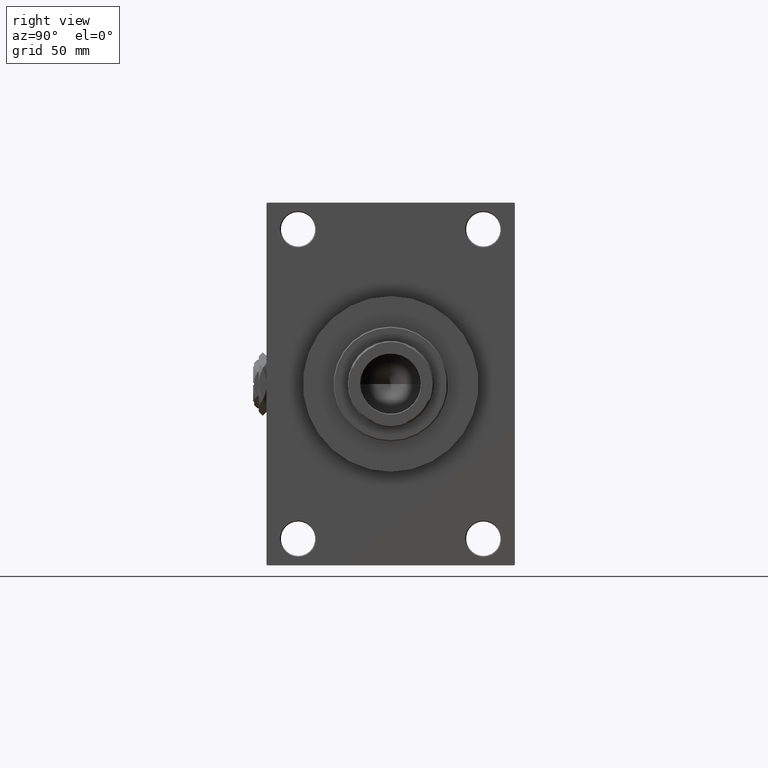
[diagram: clean part render]
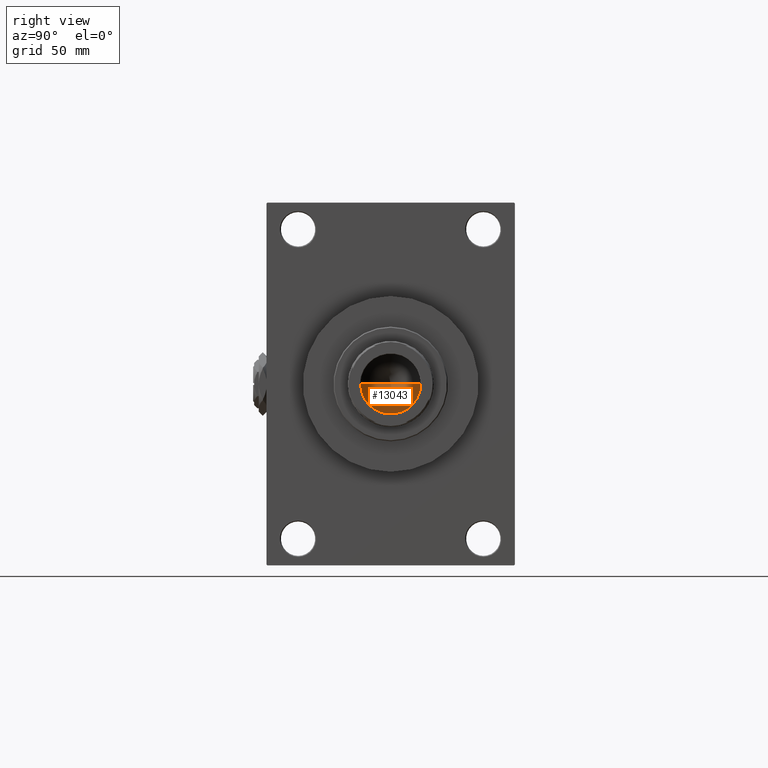
[diagram: same view with one face highlighted and labeled with its STEP entity id]
A machine part, right view. The second image highlights one B-rep face of the part: STEP entity #13043.
In plain terms, the highlighted conical surface has half-angle 59 deg.
Its self-contained STEP definition (entity closure, byte-faithful):
#2864 = ORIENTED_EDGE ( 'NONE', *, *, #49354, .F. ) ;
#4742 = LINE ( 'NONE', #43727, #10470 ) ;
#4868 = AXIS2_PLACEMENT_3D ( 'NONE', #41442, #10977, #19281 ) ;
#4982 = DIRECTION ( 'NONE',  ( 0.8571673007021112234, 0.000000000000000000, 0.5150380749100560429 ) ) ;
#8879 = CONICAL_SURFACE ( 'NONE', #4868, 15.74999999999998934, 1.029744258676652313 ) ;
#10470 = VECTOR ( 'NONE', #4982, 1000.000000000000000 ) ;
#10960 = CARTESIAN_POINT ( 'NONE',  ( -15.74999999999998934, 1.928818708657080161E-15, 183.0000000000000000 ) ) ;
#10977 = DIRECTION ( 'NONE',  ( -0.000000000000000000, -0.000000000000000000, 1.000000000000000000 ) ) ;
#12206 = CARTESIAN_POINT ( 'NONE',  ( -15.74999999999998934, 1.928818708657080161E-15, 183.0000000000000000 ) ) ;
#13043 = ADVANCED_FACE ( 'NONE', ( #22309 ), #8879, .F. ) ;
#15347 = CIRCLE ( 'NONE', #38690, 15.74999999999998934 ) ;
#19251 = DIRECTION ( 'NONE',  ( -0.8571673007021112234, 1.049727191138617340E-16, 0.5150380749100560429 ) ) ;
#19281 = DIRECTION ( 'NONE',  ( 1.000000000000000000, 0.000000000000000000, 0.000000000000000000 ) ) ;
#20252 = VERTEX_POINT ( 'NONE', #47128 ) ;
#22309 = FACE_OUTER_BOUND ( 'NONE', #48621, .T. ) ;
#26643 = ORIENTED_EDGE ( 'NONE', *, *, #47104, .T. ) ;
#30306 = DIRECTION ( 'NONE',  ( 1.000000000000000000, 0.000000000000000000, 0.000000000000000000 ) ) ;
#35113 = LINE ( 'NONE', #12206, #46740 ) ;
#37527 = CARTESIAN_POINT ( 'NONE',  ( -1.584115414415908206E-14, 0.000000000000000000, 173.5364452503158930 ) ) ;
#38365 = DIRECTION ( 'NONE',  ( -0.000000000000000000, -0.000000000000000000, 1.000000000000000000 ) ) ;
#38560 = ORIENTED_EDGE ( 'NONE', *, *, #48457, .T. ) ;
#38690 = AXIS2_PLACEMENT_3D ( 'NONE', #41888, #38365, #30306 ) ;
#41442 = CARTESIAN_POINT ( 'NONE',  ( 0.000000000000000000, 0.000000000000000000, 183.0000000000000000 ) ) ;
#41888 = CARTESIAN_POINT ( 'NONE',  ( 0.000000000000000000, 0.000000000000000000, 183.0000000000000000 ) ) ;
#41992 = VERTEX_POINT ( 'NONE', #37527 ) ;
#43727 = CARTESIAN_POINT ( 'NONE',  ( 15.74999999999998934, 0.000000000000000000, 183.0000000000000000 ) ) ;
#46290 = VERTEX_POINT ( 'NONE', #10960 ) ;
#46740 = VECTOR ( 'NONE', #19251, 1000.000000000000000 ) ;
#47104 = EDGE_CURVE ( 'NONE', #41992, #20252, #4742, .T. ) ;
#47128 = CARTESIAN_POINT ( 'NONE',  ( 15.74999999999998934, 0.000000000000000000, 183.0000000000000000 ) ) ;
#48457 = EDGE_CURVE ( 'NONE', #20252, #46290, #15347, .T. ) ;
#48621 = EDGE_LOOP ( 'NONE', ( #2864, #26643, #38560 ) ) ;
#49354 = EDGE_CURVE ( 'NONE', #41992, #46290, #35113, .T. ) ;